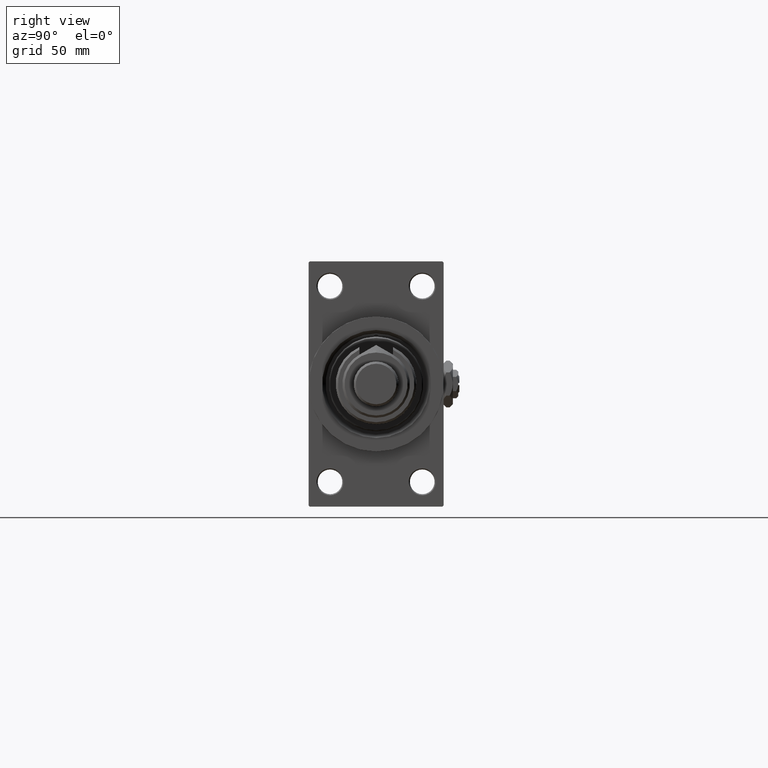
[diagram: clean part render]
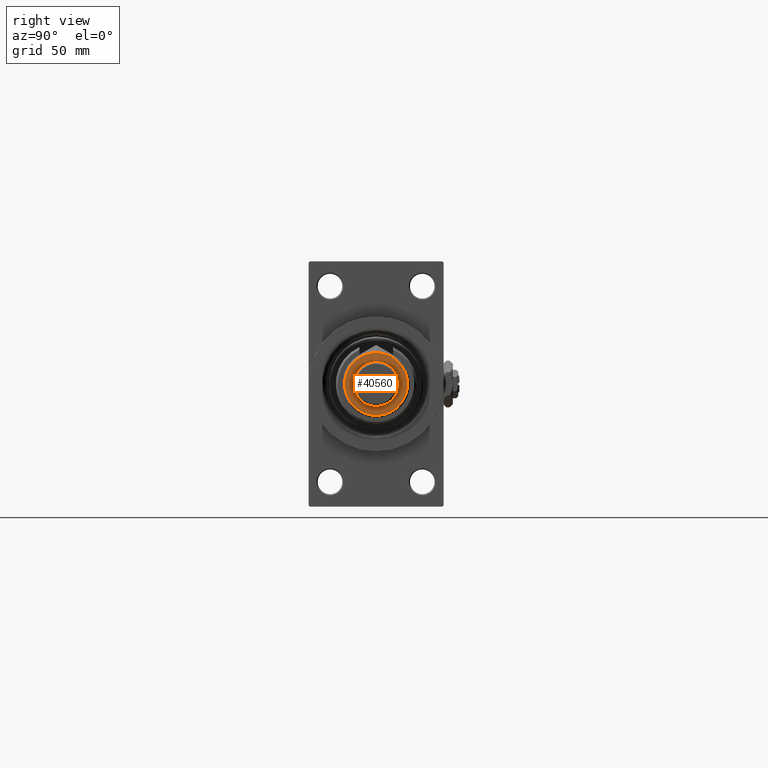
[diagram: same view with one face highlighted and labeled with its STEP entity id]
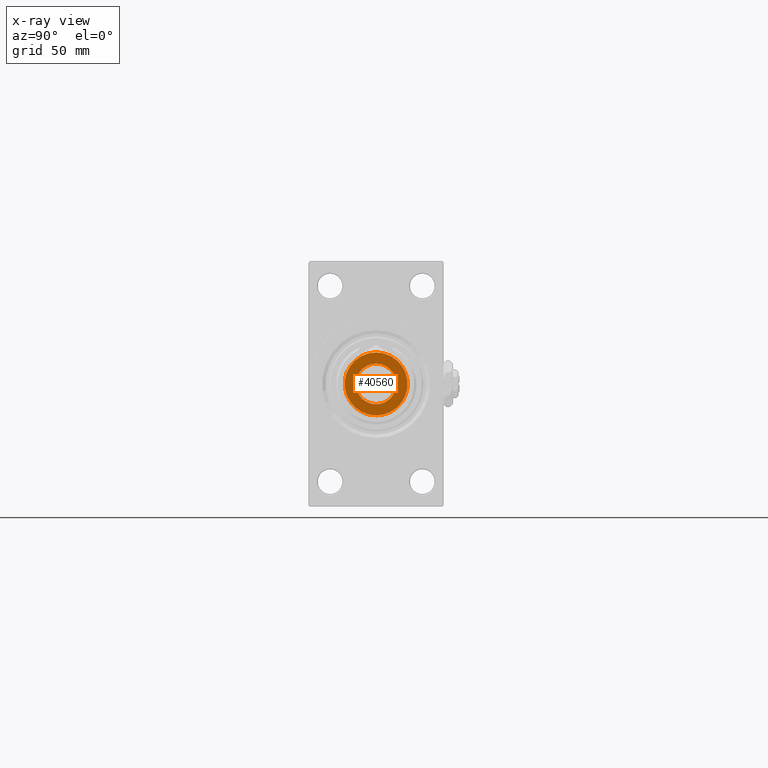
[diagram: x-ray of the same camera — body ghosted, the highlighted face saturated]
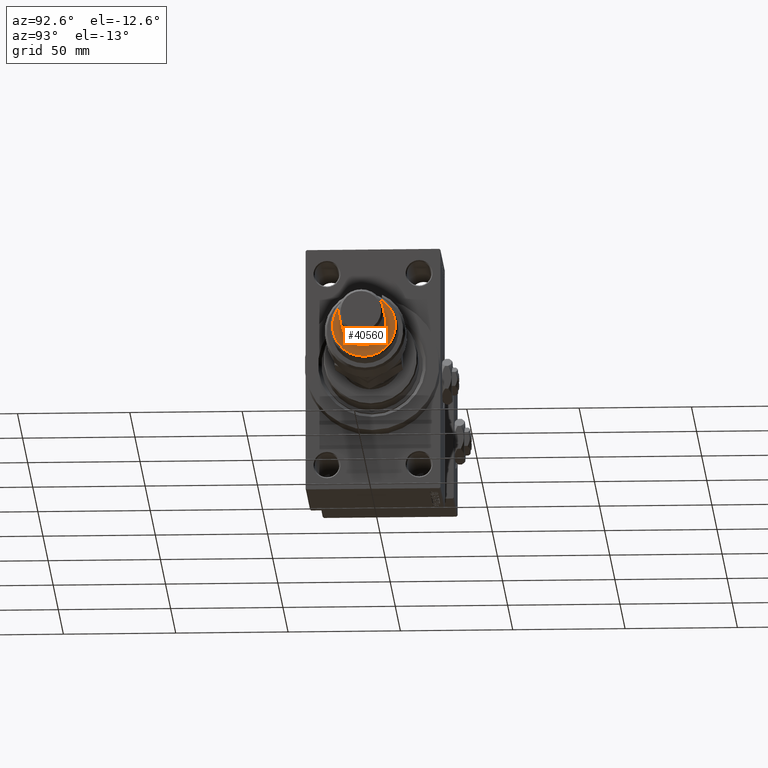
[diagram: same view with one face highlighted and labeled with its STEP entity id]
A machine part, right view. The second image highlights one B-rep face of the part: STEP entity #40560.
The next image is the same camera in x-ray: the body ghosted, the highlighted face saturated — about 0% of this face is hidden behind the body in this view.
A second angle (auxiliary view) of the same face is appended — the face is thin or edge-on in the first view.
In plain terms, the highlighted planar face has unit normal (1, 0, 0).
Its self-contained STEP definition (entity closure, byte-faithful):
#191 = DIRECTION ( 'NONE',  ( 1.000000000000000000, 0.000000000000000000, 0.000000000000000000 ) ) ;
#417 = CARTESIAN_POINT ( 'NONE',  ( -9.000000000000000000, 0.000000000000000000, 26.00000000000000355 ) ) ;
#3891 = DIRECTION ( 'NONE',  ( 0.000000000000000000, 0.000000000000000000, 1.000000000000000000 ) ) ;
#4782 = CIRCLE ( 'NONE', #51364, 9.000000000000000000 ) ;
#6266 = VERTEX_POINT ( 'NONE', #35155 ) ;
#8460 = CARTESIAN_POINT ( 'NONE',  ( 13.99999999999997513, 1.775737858763660437E-15, 26.00000000000000355 ) ) ;
#8621 = AXIS2_PLACEMENT_3D ( 'NONE', #44426, #43652, #27974 ) ;
#10206 = ORIENTED_EDGE ( 'NONE', *, *, #15263, .F. ) ;
#11991 = EDGE_CURVE ( 'NONE', #6266, #34798, #4782, .T. ) ;
#14043 = DIRECTION ( 'NONE',  ( 1.000000000000000000, 0.000000000000000000, 0.000000000000000000 ) ) ;
#15263 = EDGE_CURVE ( 'NONE', #34798, #6266, #51357, .T. ) ;
#16070 = PLANE ( 'NONE',  #8621 ) ;
#18356 = EDGE_LOOP ( 'NONE', ( #10206, #30300 ) ) ;
#19264 = VERTEX_POINT ( 'NONE', #8460 ) ;
#19477 = VERTEX_POINT ( 'NONE', #20324 ) ;
#20324 = CARTESIAN_POINT ( 'NONE',  ( -13.99999999999997513, 0.000000000000000000, 26.00000000000000355 ) ) ;
#20379 = EDGE_CURVE ( 'NONE', #19477, #19264, #47343, .T. ) ;
#21617 = DIRECTION ( 'NONE',  ( 0.000000000000000000, 0.000000000000000000, 1.000000000000000000 ) ) ;
#21887 = DIRECTION ( 'NONE',  ( 1.000000000000000000, 0.000000000000000000, 0.000000000000000000 ) ) ;
#25285 = EDGE_CURVE ( 'NONE', #19264, #19477, #29839, .T. ) ;
#27974 = DIRECTION ( 'NONE',  ( 1.000000000000000000, 0.000000000000000000, -0.000000000000000000 ) ) ;
#28798 = CARTESIAN_POINT ( 'NONE',  ( 0.000000000000000000, 0.000000000000000000, 26.00000000000000355 ) ) ;
#29839 = CIRCLE ( 'NONE', #36614, 13.99999999999997513 ) ;
#30300 = ORIENTED_EDGE ( 'NONE', *, *, #11991, .F. ) ;
#33897 = CARTESIAN_POINT ( 'NONE',  ( 0.000000000000000000, 0.000000000000000000, 26.00000000000000355 ) ) ;
#34798 = VERTEX_POINT ( 'NONE', #417 ) ;
#35149 = FACE_BOUND ( 'NONE', #18356, .T. ) ;
#35155 = CARTESIAN_POINT ( 'NONE',  ( 9.000000000000000000, 1.102182119232617714E-15, 26.00000000000000355 ) ) ;
#35235 = AXIS2_PLACEMENT_3D ( 'NONE', #37528, #21617, #21887 ) ;
#36487 = ORIENTED_EDGE ( 'NONE', *, *, #20379, .T. ) ;
#36614 = AXIS2_PLACEMENT_3D ( 'NONE', #48072, #40348, #45135 ) ;
#37528 = CARTESIAN_POINT ( 'NONE',  ( 0.000000000000000000, 0.000000000000000000, 26.00000000000000355 ) ) ;
#40348 = DIRECTION ( 'NONE',  ( 0.000000000000000000, 0.000000000000000000, 1.000000000000000000 ) ) ;
#40560 = ADVANCED_FACE ( 'NONE', ( #52388, #35149 ), #16070, .T. ) ;
#41657 = EDGE_LOOP ( 'NONE', ( #36487, #41741 ) ) ;
#41741 = ORIENTED_EDGE ( 'NONE', *, *, #25285, .T. ) ;
#41862 = DIRECTION ( 'NONE',  ( 0.000000000000000000, 0.000000000000000000, 1.000000000000000000 ) ) ;
#42261 = AXIS2_PLACEMENT_3D ( 'NONE', #28798, #3891, #191 ) ;
#43652 = DIRECTION ( 'NONE',  ( 0.000000000000000000, 0.000000000000000000, 1.000000000000000000 ) ) ;
#44426 = CARTESIAN_POINT ( 'NONE',  ( 0.000000000000000000, 0.000000000000000000, 26.00000000000000355 ) ) ;
#45135 = DIRECTION ( 'NONE',  ( 1.000000000000000000, 0.000000000000000000, 0.000000000000000000 ) ) ;
#47343 = CIRCLE ( 'NONE', #42261, 13.99999999999997513 ) ;
#48072 = CARTESIAN_POINT ( 'NONE',  ( 0.000000000000000000, 0.000000000000000000, 26.00000000000000355 ) ) ;
#51357 = CIRCLE ( 'NONE', #35235, 9.000000000000000000 ) ;
#51364 = AXIS2_PLACEMENT_3D ( 'NONE', #33897, #41862, #14043 ) ;
#52388 = FACE_OUTER_BOUND ( 'NONE', #41657, .T. ) ;